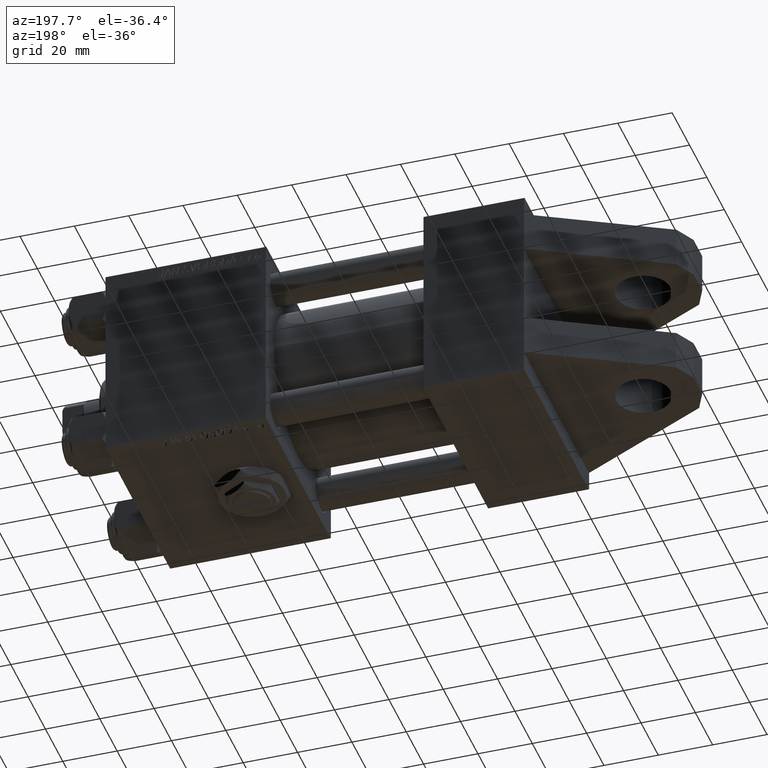
[diagram: clean part render]
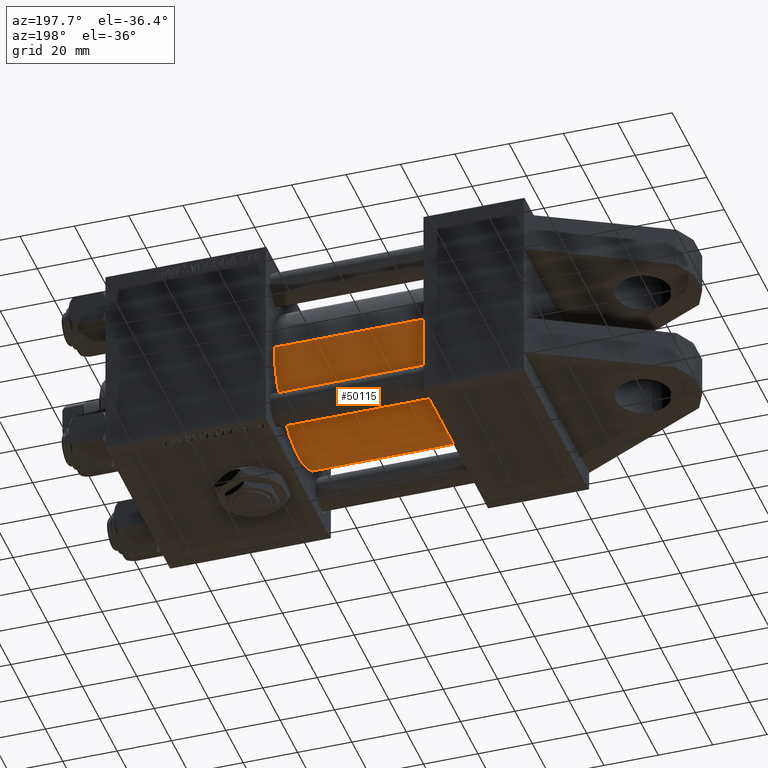
[diagram: same view with one face highlighted and labeled with its STEP entity id]
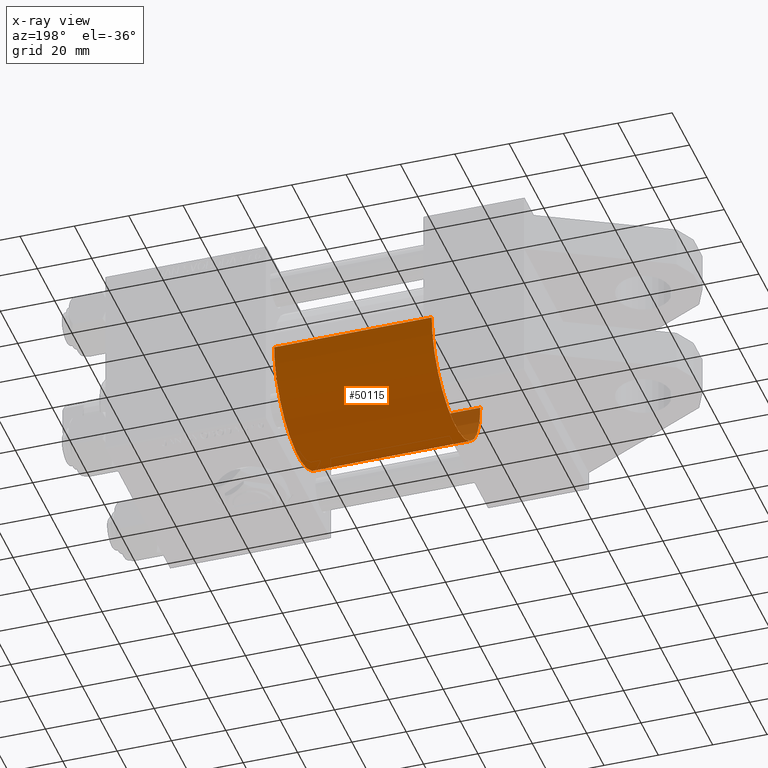
[diagram: x-ray of the same camera — body ghosted, the highlighted face saturated]
A machine part, auxiliary view. The second image highlights one B-rep face of the part: STEP entity #50115.
The next image is the same camera in x-ray: the body ghosted, the highlighted face saturated — about 3% of this face is hidden behind the body in this view.
In plain terms, the highlighted cylindrical surface (partial cylindrical patch) has radius 28 mm, axis along (-1, -0, 0).
Its self-contained STEP definition (entity closure, byte-faithful):
#925 = ORIENTED_EDGE ( 'NONE', *, *, #32917, .T. ) ;
#2041 = DIRECTION ( 'NONE',  ( -1.000000000000000000, -0.000000000000000000, -0.000000000000000000 ) ) ;
#2702 = DIRECTION ( 'NONE',  ( 0.000000000000000000, 0.000000000000000000, 1.000000000000000000 ) ) ;
#3474 = DIRECTION ( 'NONE',  ( 1.000000000000000000, -0.000000000000000000, 0.000000000000000000 ) ) ;
#7038 = AXIS2_PLACEMENT_3D ( 'NONE', #33230, #2041, #44672 ) ;
#8064 = CARTESIAN_POINT ( 'NONE',  ( 95.00000000000000000, -3.469446951953614189E-15, 0.000000000000000000 ) ) ;
#8125 = CARTESIAN_POINT ( 'NONE',  ( 95.00000000000000000, -3.469446951953614189E-15, 28.00000000000000000 ) ) ;
#8318 = DIRECTION ( 'NONE',  ( 1.000000000000000000, 0.000000000000000000, 0.000000000000000000 ) ) ;
#9748 = AXIS2_PLACEMENT_3D ( 'NONE', #38294, #3474, #2702 ) ;
#10688 = VERTEX_POINT ( 'NONE', #42070 ) ;
#11009 = VECTOR ( 'NONE', #16790, 1000.000000000000000 ) ;
#14918 = VERTEX_POINT ( 'NONE', #25983 ) ;
#15577 = CIRCLE ( 'NONE', #9748, 28.00000000000000000 ) ;
#16790 = DIRECTION ( 'NONE',  ( -1.000000000000000000, -0.000000000000000000, -0.000000000000000000 ) ) ;
#17450 = EDGE_CURVE ( 'NONE', #17884, #14918, #40695, .T. ) ;
#17884 = VERTEX_POINT ( 'NONE', #43704 ) ;
#19909 = CARTESIAN_POINT ( 'NONE',  ( 95.00000000000000000, -4.043591434102586818E-17, -28.00000000000000000 ) ) ;
#20070 = DIRECTION ( 'NONE',  ( -1.000000000000000000, -0.000000000000000000, -0.000000000000000000 ) ) ;
#20471 = VECTOR ( 'NONE', #20070, 1000.000000000000000 ) ;
#22852 = AXIS2_PLACEMENT_3D ( 'NONE', #8064, #8318, #24164 ) ;
#23976 = LINE ( 'NONE', #8125, #20471 ) ;
#24164 = DIRECTION ( 'NONE',  ( 0.000000000000000000, 0.000000000000000000, -1.000000000000000000 ) ) ;
#25983 = CARTESIAN_POINT ( 'NONE',  ( 37.00000000000000000, -4.043591434102586818E-17, -28.00000000000000000 ) ) ;
#28146 = EDGE_CURVE ( 'NONE', #17884, #41126, #45266, .T. ) ;
#30521 = EDGE_CURVE ( 'NONE', #41126, #10688, #23976, .T. ) ;
#32513 = ORIENTED_EDGE ( 'NONE', *, *, #17450, .T. ) ;
#32917 = EDGE_CURVE ( 'NONE', #14918, #10688, #15577, .T. ) ;
#33230 = CARTESIAN_POINT ( 'NONE',  ( 95.00000000000000000, -3.469446951953614189E-15, 0.000000000000000000 ) ) ;
#33740 = CYLINDRICAL_SURFACE ( 'NONE', #7038, 28.00000000000000000 ) ;
#37111 = ORIENTED_EDGE ( 'NONE', *, *, #28146, .F. ) ;
#37367 = FACE_OUTER_BOUND ( 'NONE', #39785, .T. ) ;
#38294 = CARTESIAN_POINT ( 'NONE',  ( 37.00000000000000000, -3.469446951953614189E-15, 0.000000000000000000 ) ) ;
#39785 = EDGE_LOOP ( 'NONE', ( #37111, #32513, #925, #44887 ) ) ;
#40695 = LINE ( 'NONE', #19909, #11009 ) ;
#41102 = CARTESIAN_POINT ( 'NONE',  ( 95.00000000000000000, -3.469446951953614189E-15, 28.00000000000000000 ) ) ;
#41126 = VERTEX_POINT ( 'NONE', #41102 ) ;
#42070 = CARTESIAN_POINT ( 'NONE',  ( 37.00000000000000000, -3.469446951953614189E-15, 28.00000000000000000 ) ) ;
#43704 = CARTESIAN_POINT ( 'NONE',  ( 95.00000000000000000, -4.043591434102586818E-17, -28.00000000000000000 ) ) ;
#44672 = DIRECTION ( 'NONE',  ( 0.000000000000000000, 0.000000000000000000, 1.000000000000000000 ) ) ;
#44887 = ORIENTED_EDGE ( 'NONE', *, *, #30521, .F. ) ;
#45266 = CIRCLE ( 'NONE', #22852, 28.00000000000000000 ) ;
#50115 = ADVANCED_FACE ( 'NONE', ( #37367 ), #33740, .T. ) ;